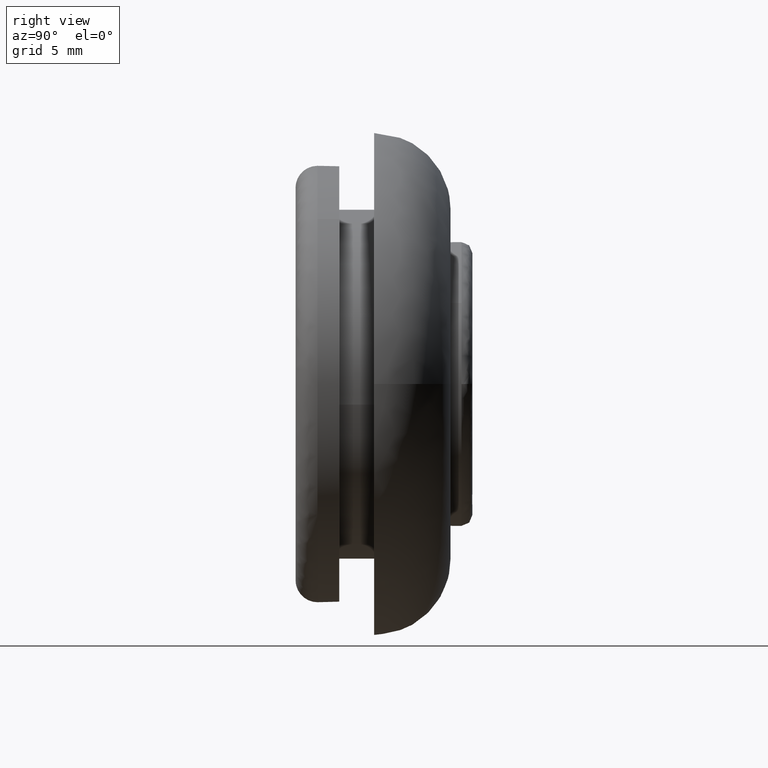
[diagram: clean part render]
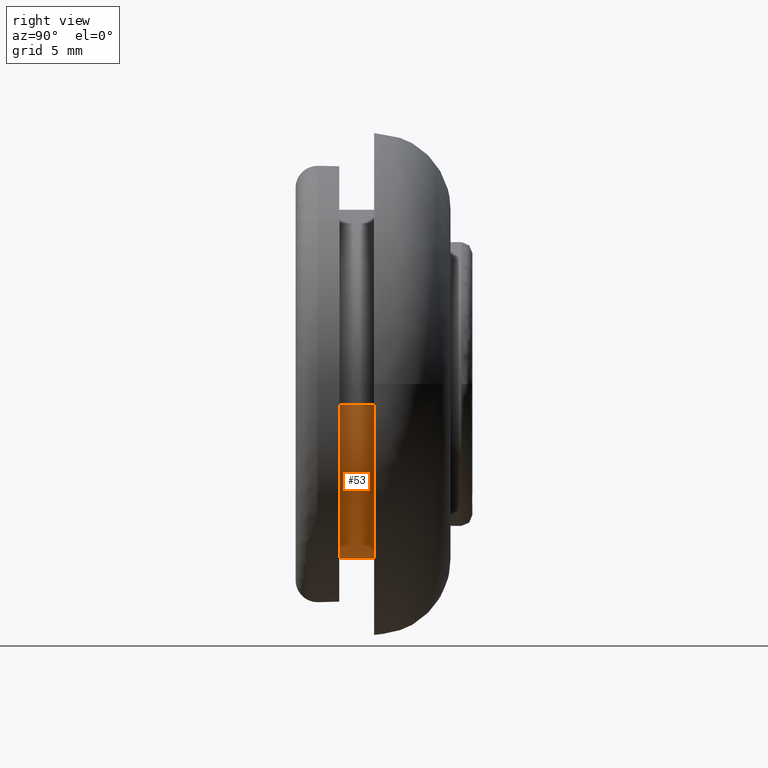
[diagram: same view with one face highlighted and labeled with its STEP entity id]
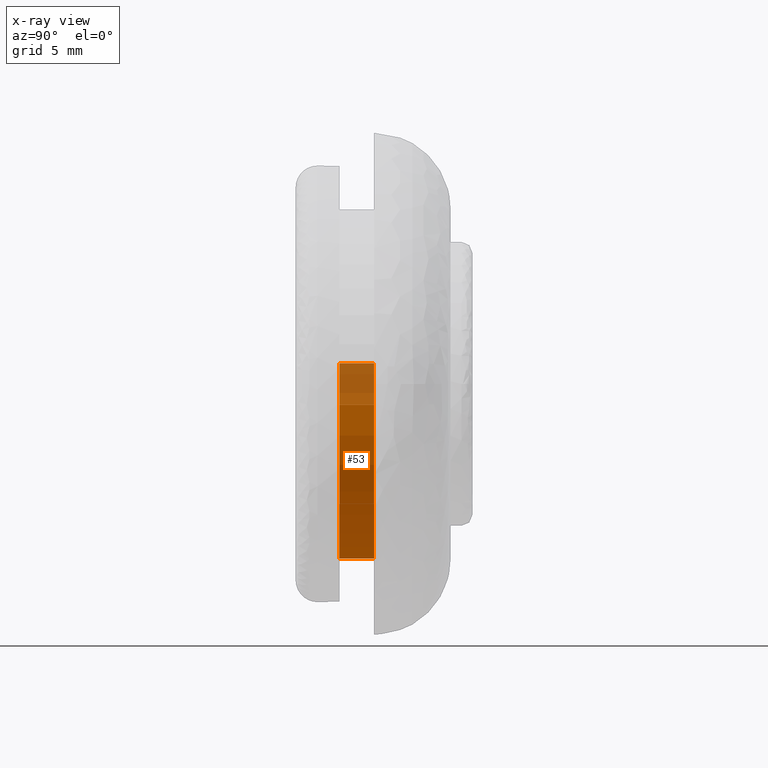
[diagram: x-ray of the same camera — body ghosted, the highlighted face saturated]
A machine part, right view. The second image highlights one B-rep face of the part: STEP entity #53.
The next image is the same camera in x-ray: the body ghosted, the highlighted face saturated — about 21% of this face is hidden behind the body in this view.
In plain terms, the highlighted cylindrical surface (partial cylindrical patch) has radius 8 mm, axis along (-0, 1, -0).
Its self-contained STEP definition (entity closure, byte-faithful):
#53=ADVANCED_FACE('',(#197),#196,.T.);
#196=CYLINDRICAL_SURFACE('',#484,8.00000000000E+000);
#197=FACE_OUTER_BOUND('',#485,.T.);
#481=CARTESIAN_POINT('',(-4.60371604143E-016,3.64000000000E+000,-8.67222113097E-016));
#482=DIRECTION('',(-4.41392932833E-017,1.00000000000E+000,-3.71339203789E-016));
#483=DIRECTION('',(-9.93009526364E-001,-2.46519032882E-032,1.18034234657E-001));
#484=AXIS2_PLACEMENT_3D('',#481,#482,#483);
#485=EDGE_LOOP('',(#607,#608,#609,#610,#611,#612));
#607=ORIENTED_EDGE('',*,*,#669,.F.);
#608=ORIENTED_EDGE('',*,*,#671,.F.);
#609=ORIENTED_EDGE('',*,*,#726,.T.);
#610=ORIENTED_EDGE('',*,*,#694,.T.);
#611=ORIENTED_EDGE('',*,*,#696,.T.);
#612=ORIENTED_EDGE('',*,*,#727,.F.);
#669=EDGE_CURVE('',#757,#758,#759,.T.);
#671=EDGE_CURVE('',#765,#757,#772,.T.);
#694=EDGE_CURVE('',#932,#933,#934,.T.);
#696=EDGE_CURVE('',#933,#940,#947,.T.);
#726=EDGE_CURVE('',#765,#932,#1150,.T.);
#727=EDGE_CURVE('',#758,#940,#1156,.T.);
#757=VERTEX_POINT('',#1225);
#758=VERTEX_POINT('',#1226);
#759=CIRCLE('',#1230,8.00000000000E+000);
#765=VERTEX_POINT('',#1231);
#772=CIRCLE('',#1239,8.00000000000E+000);
#932=VERTEX_POINT('',#1350);
#933=VERTEX_POINT('',#1351);
#934=CIRCLE('',#1355,7.99999999999E+000);
#940=VERTEX_POINT('',#1356);
#947=CIRCLE('',#1364,7.99999999999E+000);
#1150=(BOUNDED_CURVE() B_SPLINE_CURVE(1,(#1506,#1507),.UNSPECIFIED.,.F.,.F.) B_SPLINE_CURVE_WITH_KNOTS((2,2),(8.33333134656E-002,9.16666653270E-001),.UNSPECIFIED.) CURVE() GEOMETRIC_REPRESENTATION_ITEM() RATIONAL_B_SPLINE_CURVE((1.00000000000E+000,1.00000000000E+000)) REPRESENTATION_ITEM('') );
#1156=(BOUNDED_CURVE() B_SPLINE_CURVE(1,(#1508,#1509),.UNSPECIFIED.,.F.,.F.) B_SPLINE_CURVE_WITH_KNOTS((2,2),(8.33333333333E-002,9.16666666666E-001),.UNSPECIFIED.) CURVE() GEOMETRIC_REPRESENTATION_ITEM() RATIONAL_B_SPLINE_CURVE((7.50000000000E-001,7.50000000000E-001)) REPRESENTATION_ITEM('') );
#1225=CARTESIAN_POINT('',(-9.79685083214E-016,2.00000000000E+000,-8.00000000000E+000));
#1226=CARTESIAN_POINT('',(7.94391288830E+000,2.00000000000E+000,-9.45646880722E-001));
#1227=CARTESIAN_POINT('',(-3.10862446895E-013,2.00000000000E+000,2.01261229904E-012));
#1228=DIRECTION('',(0.00000000000E+000,-1.00000000000E+000,0.00000000000E+000));
#1229=DIRECTION('',(3.93018950717E-014,0.00000000000E+000,-1.00000000000E+000));
#1230=AXIS2_PLACEMENT_3D('',#1227,#1228,#1229);
#1231=CARTESIAN_POINT('',(-7.94407623198E+000,2.00000000000E+000,9.44273699999E-001));
#1236=CARTESIAN_POINT('',(-3.10862446895E-013,2.00000000000E+000,2.01261229904E-012));
#1237=DIRECTION('',(0.00000000000E+000,-1.00000000000E+000,0.00000000000E+000));
#1238=DIRECTION('',(3.93018950717E-014,0.00000000000E+000,-1.00000000000E+000));
#1239=AXIS2_PLACEMENT_3D('',#1236,#1237,#1238);
#1350=CARTESIAN_POINT('',(-7.94407623197E+000,3.60000000000E+000,9.44273699998E-001));
#1351=CARTESIAN_POINT('',(2.22044604925E-016,3.60000000000E+000,-7.99999999999E+000));
#1352=CARTESIAN_POINT('',(2.77067258025E-012,3.60000000000E+000,6.09290395914E-012));
#1353=DIRECTION('',(-2.00312689226E-014,-1.00000000000E+000,-1.34190419293E-013));
#1354=DIRECTION('',(-3.45945494473E-013,1.34190419293E-013,-1.00000000000E+000));
#1355=AXIS2_PLACEMENT_3D('',#1352,#1353,#1354);
#1356=CARTESIAN_POINT('',(7.94391288830E+000,3.60000000000E+000,-9.45646880722E-001));
#1361=CARTESIAN_POINT('',(2.77067258025E-012,3.60000000000E+000,6.09290395914E-012));
#1362=DIRECTION('',(-2.00312689226E-014,-1.00000000000E+000,-1.34190419293E-013));
#1363=DIRECTION('',(-3.45945494473E-013,1.34190419293E-013,-1.00000000000E+000));
#1364=AXIS2_PLACEMENT_3D('',#1361,#1362,#1363);
#1506=CARTESIAN_POINT('',(-7.94407621091E+000,1.99999996185E+000,9.44273877254E-001));
#1507=CARTESIAN_POINT('',(-7.94407621091E+000,3.59999997428E+000,9.44273877254E-001));
#1508=CARTESIAN_POINT('',(7.94407621091E+000,2.00000000000E+000,-9.44273877254E-001));
#1509=CARTESIAN_POINT('',(7.94407621091E+000,3.60000000000E+000,-9.44273877254E-001));